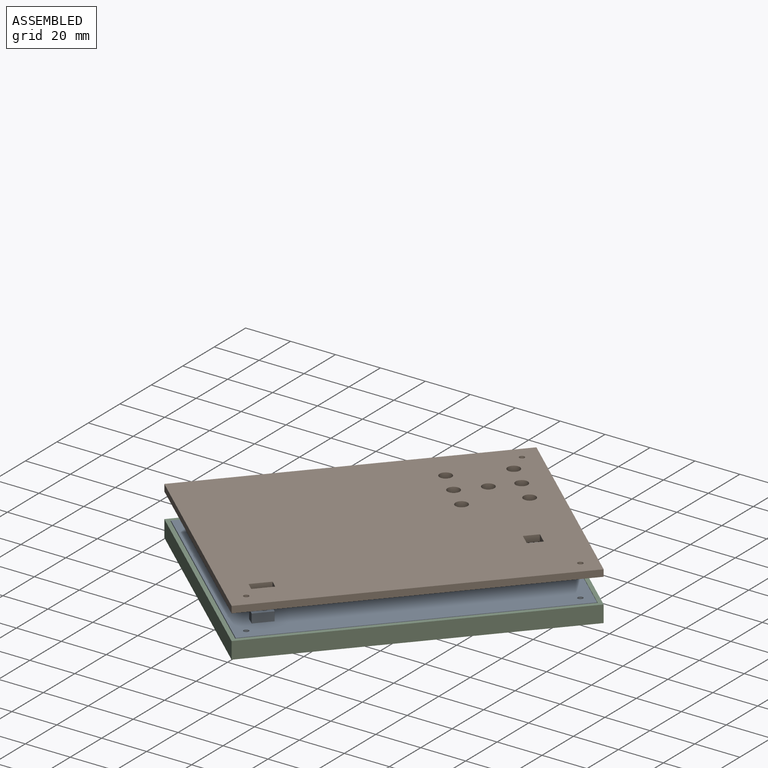
[diagram: assembled view]
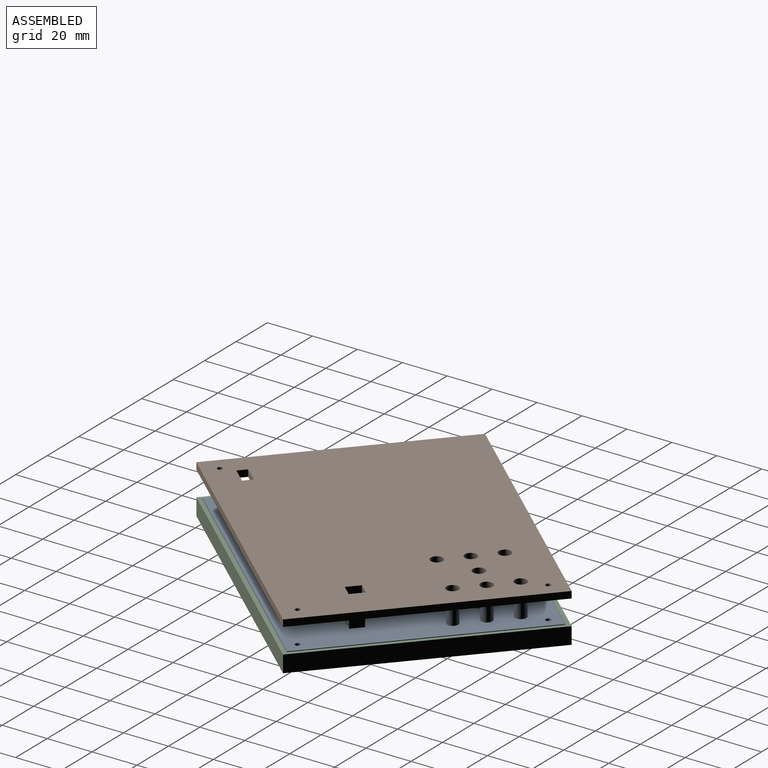
[diagram: assembled view, second angle]
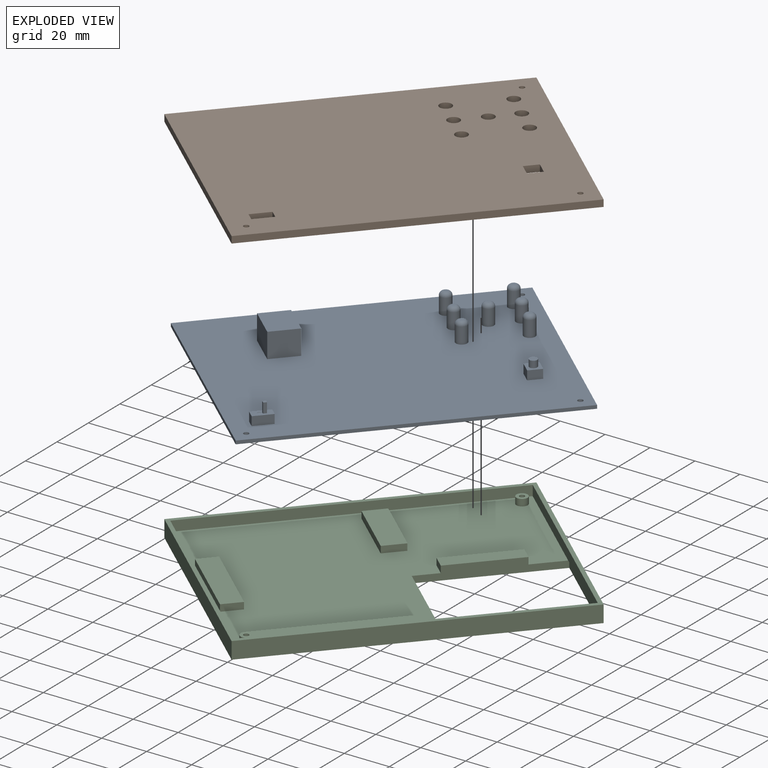
[diagram: exploded view]
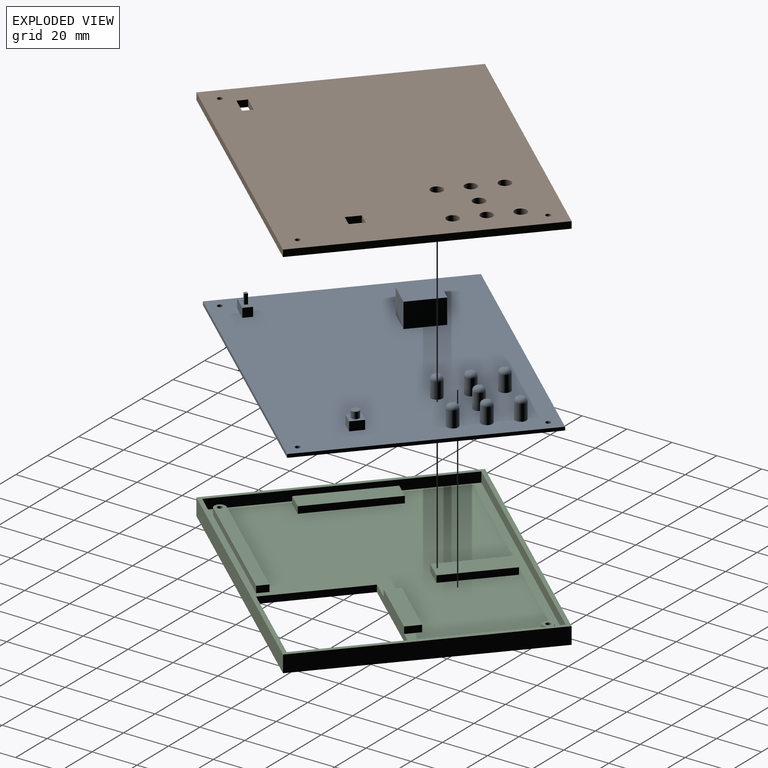
[diagram: exploded view, second angle]
ASSEMBLY  parts=3 mates=2
PART A: 56 faces, bbox 135.3x104.1x12.5 mm
  f0: plane 135.32x104.09mm, normal (0,0,1), area 13656.6mm2, adj f2,f3,f4,f5,f6,f7,f8,f10
  f1: plane 2.05x1.4mm, normal (0,0,1), area 2.9mm2, adj f13,f14,f15,f21
  f2: plane 104.09x1.5mm, normal (-1,0,0), area 156.1mm2, adj f0,f3,f8,f9
  f3: plane 135.32x1.5mm, normal (0,-1,0), area 203mm2, adj f0,f2,f4,f9
  f4: plane 104.09x1.5mm, normal (1,0,0), area 156.1mm2, adj f0,f3,f8,f9
  f5: cylinder r=1.15mm len=2.3mm, axis (0,0,-1), area 10.8mm2, adj f0,f9
  f6: cylinder r=1.15mm len=2.3mm, axis (0,0,-1), area 10.8mm2, adj f0,f9
  f7: cylinder r=1.15mm len=2.3mm, axis (0,0,-1), area 10.8mm2, adj f0,f9
  f8: plane 135.32x1.5mm, normal (0,1,0), area 203mm2, adj f0,f2,f4,f9
  f9: plane 135.32x104.09mm, normal (0,0,-1), area 14073mm2, adj f2,f3,f4,f5,f6,f7,f8
  f10: plane 4x4mm, normal (-1,0,0), area 16mm2, adj f0,f11,f16,f17
  f11: plane 8.6x4mm, normal (0,-1,0), area 34.4mm2, adj f0,f10,f12,f17
  f12: plane 4x4mm, normal (1,0,0), area 16mm2, adj f0,f11,f16,f17
  f13: plane 2.05x0.1mm, normal (0,-1,0), area 0.2mm2, adj f1,f15,f17,f21
  f14: plane 2.05x0.1mm, normal (0,1,0), area 0.2mm2, adj f1,f15,f17,f21
  f15: plane 1.4x0.1mm, normal (1,0,0), area 0.1mm2, adj f1,f13,f14,f17
  f16: plane 8.6x4mm, normal (0,1,0), area 34.4mm2, adj f0,f10,f12,f17
  f17: plane 8.6x4mm, normal (0,0,1), area 29.5mm2, adj f10,f11,f12,f13,f14,f15,f16,f18
  f18: plane 4.4x1.45mm, normal (0,1,0), area 6.4mm2, adj f17,f19,f21,f22
  f19: plane 4.4x1.4mm, normal (1,0,0), area 6.2mm2, adj f17,f18,f20,f22
  f20: plane 4.4x1.45mm, normal (0,-1,0), area 6.4mm2, adj f17,f19,f21,f22
  f21: plane 4.5x1.4mm, normal (-1,0,0), area 6.3mm2, adj f1,f13,f14,f18,f20,f22
  f22: plane 1.45x1.4mm, normal (0,0,1), area 2mm2, adj f18,f19,f20,f21
  f23: plane 6x4mm, normal (-1,0,0), area 24mm2, adj f0,f24,f26,f27
  f24: plane 6x4mm, normal (0,-1,0), area 24mm2, adj f0,f23,f25,f27
  f25: plane 6x4mm, normal (1,0,0), area 24mm2, adj f0,f24,f26,f27
  f26: plane 6x4mm, normal (0,1,0), area 24mm2, adj f0,f23,f25,f27
  f27: plane 6x6mm, normal (0,0,1), area 26.5mm2, adj f23,f24,f25,f26,f28
  f28: cylinder r=1.74mm len=3.47mm, axis (0,0,-1), area 32.7mm2, adj f27,f29
  f29: plane 3.47x3.47mm, normal (0,0,1), area 9.5mm2, adj f28
  f30: cylinder r=2.5mm len=7.2mm, axis (0,0,-1), area 113.1mm2, adj f0,f44
  f31: plane 1.4x1.4mm, normal (0,0,1), area 1.5mm2, adj f44
  f32: cylinder r=2.5mm len=7.2mm, axis (0,0,-1), area 113.1mm2, adj f0,f46
  f33: plane 1.4x1.4mm, normal (0,0,1), area 1.5mm2, adj f46
  f34: cylinder r=2.5mm len=7.2mm, axis (0,0,-1), area 113.1mm2, adj f0,f50
  f35: plane 1.4x1.4mm, normal (0,0,1), area 1.5mm2, adj f50
  f36: cylinder r=2.5mm len=7.2mm, axis (0,0,-1), area 113.1mm2, adj f0,f49
  f37: plane 1.4x1.4mm, normal (0,0,1), area 1.5mm2, adj f49
  f38: cylinder r=2.5mm len=7.2mm, axis (0,0,-1), area 113.1mm2, adj f0,f45
  f39: plane 1.4x1.4mm, normal (0,0,1), area 1.5mm2, adj f45
  f40: cylinder r=2.5mm len=7.2mm, axis (0,0,-1), area 113.1mm2, adj f0,f48
  f41: plane 1.4x1.4mm, normal (0,0,1), area 1.5mm2, adj f48
  f42: cylinder r=2.5mm len=7.2mm, axis (0,0,-1), area 113.1mm2, adj f0,f47
  f43: plane 1.4x1.4mm, normal (0,0,1), area 1.5mm2, adj f47
  f44: torus R=0.7mm, axis (0,0,1), area 32.8mm2, adj f30,f31
  f45: torus R=0.7mm, axis (0,0,1), area 32.8mm2, adj f38,f39
  f46: torus R=0.7mm, axis (0,0,1), area 32.8mm2, adj f32,f33
  f47: torus R=0.7mm, axis (0,0,1), area 32.8mm2, adj f42,f43
  f48: torus R=0.7mm, axis (0,0,1), area 32.8mm2, adj f40,f41
  f49: torus R=0.7mm, axis (0,0,1), area 32.8mm2, adj f36,f37
  f50: torus R=0.7mm, axis (0,0,1), area 32.8mm2, adj f34,f35
  f51: plane 16.37x11mm, normal (-1,0,0), area 180.1mm2, adj f0,f52,f54,f55
  f52: plane 12.73x11mm, normal (0,-1,0), area 140.1mm2, adj f0,f51,f53,f55
  f53: plane 16.37x11mm, normal (1,0,0), area 180.1mm2, adj f0,f52,f54,f55
  f54: plane 12.73x11mm, normal (0,1,0), area 140.1mm2, adj f0,f51,f53,f55
  f55: plane 16.37x12.73mm, normal (0,0,1), area 208.5mm2, adj f51,f52,f53,f54
PART B: 24 faces, bbox 139.3x108.1x3 mm
  f0: plane 139.32x108.09mm, normal (0,0,-1), area 14805.8mm2, adj f2,f3,f4,f5,f6,f7,f8,f9
  f1: plane 139.32x108.09mm, normal (0,0,1), area 14805.8mm2, adj f2,f3,f4,f5,f6,f7,f8,f9
  f2: plane 108.09x3mm, normal (1,0,0), area 324.3mm2, adj f0,f1,f3,f5
  f3: plane 139.32x3mm, normal (0,1,0), area 418mm2, adj f0,f1,f2,f4
  f4: plane 108.09x3mm, normal (-1,0,0), area 324.3mm2, adj f0,f1,f3,f5
  f5: plane 139.32x3mm, normal (0,-1,0), area 418mm2, adj f0,f1,f2,f4
  f6: plane 4.4x3mm, normal (-1,0,0), area 13.2mm2, adj f0,f1,f7,f9
  f7: plane 9x3mm, normal (0,-1,0), area 27mm2, adj f0,f1,f6,f8
  f8: plane 4.4x3mm, normal (1,0,0), area 13.2mm2, adj f0,f1,f7,f9
  f9: plane 9x3mm, normal (0,1,0), area 27mm2, adj f0,f1,f6,f8
  f10: plane 6.4x3mm, normal (1,0,0), area 19.2mm2, adj f0,f1,f11,f13
  f11: plane 6.4x3mm, normal (0,1,0), area 19.2mm2, adj f0,f1,f10,f12
  f12: plane 6.4x3mm, normal (-1,0,0), area 19.2mm2, adj f0,f1,f11,f13
  f13: plane 6.4x3mm, normal (0,-1,0), area 19.2mm2, adj f0,f1,f10,f12
  f14: cylinder r=1.15mm len=3mm, axis (0,0,1), area 21.7mm2, adj f0,f1
  f15: cylinder r=1.15mm len=3mm, axis (0,0,1), area 21.7mm2, adj f0,f1
  f16: cylinder r=1.15mm len=3mm, axis (0,0,1), area 21.7mm2, adj f0,f1
  f17: cylinder r=2.7mm len=5.4mm, axis (0,0,1), area 50.9mm2, adj f0,f1
  f18: cylinder r=2.7mm len=5.4mm, axis (0,0,1), area 50.9mm2, adj f0,f1
  f19: cylinder r=2.7mm len=5.4mm, axis (0,0,1), area 50.9mm2, adj f0,f1
  f20: cylinder r=2.7mm len=5.4mm, axis (0,0,1), area 50.9mm2, adj f0,f1
  f21: cylinder r=2.7mm len=5.4mm, axis (0,0,1), area 50.9mm2, adj f0,f1
  f22: cylinder r=2.7mm len=5.4mm, axis (0,0,1), area 50.9mm2, adj f0,f1
  f23: cylinder r=2.7mm len=5.4mm, axis (0,0,1), area 50.9mm2, adj f0,f1
PART C: 41 faces, bbox 139.3x108.1x7.5 mm
  f0: plane 135.72x104.49mm, normal (0,0,1), area 10136.4mm2, adj f3,f4,f11,f14,f15,f16,f17,f21
  f1: plane 139.32x108.09mm, normal (0,0,-1), area 12227.1mm2, adj f5,f6,f7,f8,f31,f32,f33,f34
  f2: plane 32.84x6.78mm, normal (0,0,1), area 222.6mm2, adj f3,f4,f25,f31
  f3: plane 6.78x3mm, normal (-1,0,0), area 20.3mm2, adj f0,f2,f25,f31
  f4: plane 6.78x3mm, normal (1,0,0), area 20.3mm2, adj f0,f2,f25,f31
  f5: plane 108.09x7.5mm, normal (1,0,0), area 810.7mm2, adj f1,f6,f8,f35
  f6: plane 139.32x7.5mm, normal (0,1,0), area 1044.9mm2, adj f1,f5,f7,f35
  f7: plane 108.09x7.5mm, normal (-1,0,0), area 810.7mm2, adj f1,f6,f8,f35
  f8: plane 139.32x7.5mm, normal (0,-1,0), area 1044.9mm2, adj f1,f5,f7,f35
  f9: plane 5x5mm, normal (0,0,1), area 15.5mm2, adj f10,f11
  f10: cylinder r=1.15mm len=3mm, axis (0,0,-1), area 21.7mm2, adj f9,f12
  f11: cylinder r=2.5mm len=5mm, axis (0,0,-1), area 47.1mm2, adj f0,f9
  f12: plane 2.3x2.3mm, normal (0,0,1), area 4.2mm2, adj f10
  f13: plane 71.49x4.99mm, normal (0,0,1), area 349.8mm2, adj f14,f15,f16,f17,f18
  f14: plane 69x3mm, normal (0,-1,0), area 207mm2, adj f0,f13,f15,f16
  f15: plane 4.99x3mm, normal (1,0,0), area 15mm2, adj f0,f13,f14,f17
  f16: cylinder r=2.49mm len=4.99mm, axis (0,0,-1), area 23.5mm2, adj f0,f13,f14,f17
  f17: plane 69x3mm, normal (0,1,0), area 207mm2, adj f0,f13,f15,f16
  f18: cylinder r=1.15mm len=3mm, axis (0,0,-1), area 21.7mm2, adj f13,f19
  f19: plane 2.3x2.3mm, normal (0,0,1), area 4.2mm2, adj f18
  f20: plane 40.09x9mm, normal (0,0,1), area 360.8mm2, adj f21,f22,f23,f24
  f21: plane 9x3mm, normal (0,-1,0), area 27mm2, adj f0,f20,f22,f23
  f22: plane 40.09x3mm, normal (1,0,0), area 120.3mm2, adj f0,f20,f21,f24
  f23: plane 40.09x3mm, normal (-1,0,0), area 120.3mm2, adj f0,f20,f21,f24
  f24: plane 9x3mm, normal (0,1,0), area 27mm2, adj f0,f20,f22,f23
  f25: plane 32.84x3mm, normal (0,1,0), area 98.5mm2, adj f0,f2,f3,f4
  f26: plane 30.92x10mm, normal (0,0,1), area 309.2mm2, adj f27,f28,f29,f30
  f27: plane 10x3mm, normal (0,-1,0), area 30mm2, adj f0,f26,f28,f30
  f28: plane 30.92x3mm, normal (1,0,0), area 92.8mm2, adj f0,f26,f27,f29
  f29: plane 10x3mm, normal (0,1,0), area 30mm2, adj f0,f26,f28,f30
  f30: plane 30.92x3mm, normal (-1,0,0), area 92.8mm2, adj f0,f26,f27,f29
  f31: plane 59x6mm, normal (0,-1,0), area 275.5mm2, adj f0,f1,f2,f3,f4,f32,f34,f40
  f32: plane 48x3mm, normal (-1,0,0), area 144mm2, adj f1,f31,f33,f40
  f33: plane 59x3mm, normal (0,1,0), area 177mm2, adj f1,f32,f34,f40
  f34: plane 48x3mm, normal (1,0,0), area 144mm2, adj f0,f1,f31,f33,f40
  f35: plane 139.32x108.09mm, normal (0,0,1), area 877.7mm2, adj f5,f6,f7,f8,f36,f37,f38,f39
  f36: plane 104.49x4.5mm, normal (-1,0,0), area 470.2mm2, adj f0,f35,f37,f39,f40
  f37: plane 135.72x4.5mm, normal (0,1,0), area 610.7mm2, adj f0,f35,f36,f38,f40
  f38: plane 104.49x4.5mm, normal (1,0,0), area 470.2mm2, adj f0,f35,f37,f39
  f39: plane 135.72x4.5mm, normal (0,-1,0), area 610.7mm2, adj f0,f35,f36,f38
  f40: plane 59x48mm, normal (0,0,-1), area 53.2mm2, adj f31,f32,f33,f34,f36,f37
PLACE A rot(axis=(0,0,1),48.1deg) t=(-170.01,30.27,121.95)mm
PLACE B rot(axis=(0,0,1),48.1deg) t=(-171.42,39.98,137.45)mm
PLACE C rot(axis=(0,0,1),48.1deg) t=(-171.42,39.98,118.8)mm
MATE slider C.f10 <-> A.f5  axis (0,0,1) through (-167.02,120.14,121.8)mm
MATE slider B.f16 <-> A.f5  axis (0,0,-1) through (-167.02,120.14,134.45)mm
